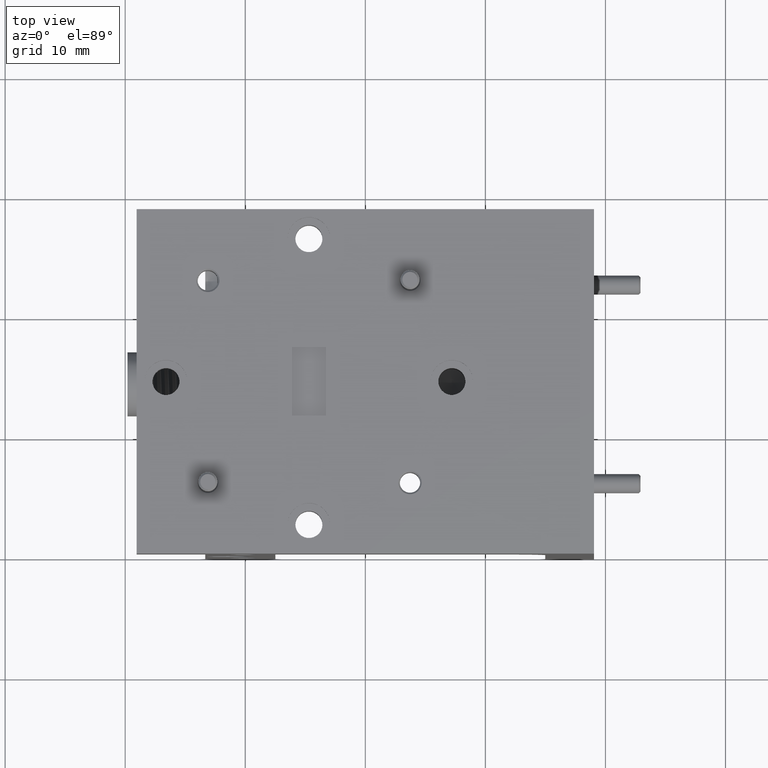
[diagram: clean part render]
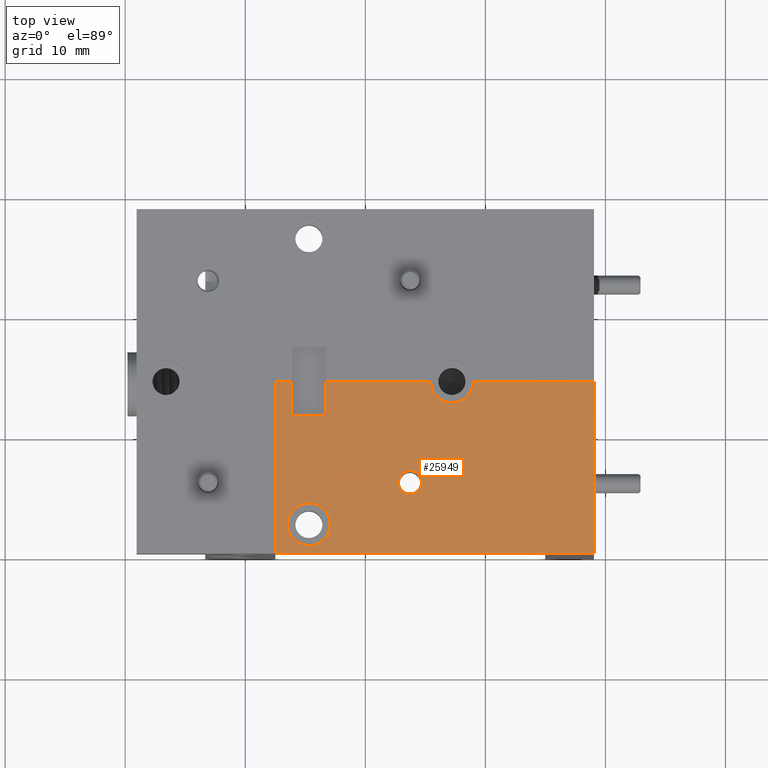
[diagram: same view with one face highlighted and labeled with its STEP entity id]
A machine part, top view. The second image highlights one B-rep face of the part: STEP entity #25949.
In plain terms, the highlighted planar face has unit normal (-0, 0, -1).
Its self-contained STEP definition (entity closure, byte-faithful):
#202 = VERTEX_POINT ( 'NONE', #14146 ) ;
#234 = ORIENTED_EDGE ( 'NONE', *, *, #18430, .F. ) ;
#330 = CARTESIAN_POINT ( 'NONE',  ( -0.2949999999999988200, 0.5649999999999999500, 0.5649999999999988400 ) ) ;
#1016 = CARTESIAN_POINT ( 'NONE',  ( -0.1290000000000008100, 0.5649999999999999500, 0.5650000000000000600 ) ) ;
#1029 = VERTEX_POINT ( 'NONE', #9096 ) ;
#1791 = DIRECTION ( 'NONE',  ( 1.387778780781711000E-017, 1.000000000000000000, 4.050170708698059000E-018 ) ) ;
#1998 = EDGE_CURVE ( 'NONE', #27617, #6020, #11255, .T. ) ;
#2064 = CARTESIAN_POINT ( 'NONE',  ( -0.2949999999999988200, 0.5649999999999999500, 0.5649999999999988400 ) ) ;
#2114 = EDGE_CURVE ( 'NONE', #2883, #10790, #21637, .T. ) ;
#2136 = CARTESIAN_POINT ( 'NONE',  ( -0.2949999999999988200, 0.5649999999999999500, 0.5649999999999988400 ) ) ;
#2465 = EDGE_CURVE ( 'NONE', #5831, #1029, #3592, .T. ) ;
#2883 = VERTEX_POINT ( 'NONE', #6012 ) ;
#3416 = CARTESIAN_POINT ( 'NONE',  ( -0.1290000000000008100, 0.4530000000000002400, 0.5650000000000000600 ) ) ;
#3592 = CIRCLE ( 'NONE', #15293, 0.07000000000000017300 ) ;
#3831 = VERTEX_POINT ( 'NONE', #20915 ) ;
#4678 = CARTESIAN_POINT ( 'NONE',  ( 0.1849563036811929000, 0.2335436963188052000, 0.5649999999999991700 ) ) ;
#4899 = VERTEX_POINT ( 'NONE', #6624 ) ;
#5302 = CARTESIAN_POINT ( 'NONE',  ( -0.2949999999999988200, 6.829619984160658000E-017, 0.5649999999999988400 ) ) ;
#5313 = LINE ( 'NONE', #8975, #17527 ) ;
#5366 = CARTESIAN_POINT ( 'NONE',  ( 0.2837499999999994500, 0.5649999999999999500, 0.5650000000000000600 ) ) ;
#5577 = AXIS2_PLACEMENT_3D ( 'NONE', #18309, #16226, #8966 ) ;
#5785 = DIRECTION ( 'NONE',  ( 1.000000000000000000, 0.0000000000000000000, 0.0000000000000000000 ) ) ;
#5831 = VERTEX_POINT ( 'NONE', #26460 ) ;
#5916 = DIRECTION ( 'NONE',  ( 1.000000000000000000, 0.0000000000000000000, 0.0000000000000000000 ) ) ;
#6012 = CARTESIAN_POINT ( 'NONE',  ( 0.1079563036811929400, 0.2335436963188052000, 0.5649999999999991700 ) ) ;
#6020 = VERTEX_POINT ( 'NONE', #1016 ) ;
#6570 = DIRECTION ( 'NONE',  ( 1.387778780781711000E-017, 1.000000000000000000, 4.050170708698059000E-018 ) ) ;
#6624 = CARTESIAN_POINT ( 'NONE',  ( -0.2550000000000007300, 0.09625000000000004400, 0.5650000000000000600 ) ) ;
#7839 = DIRECTION ( 'NONE',  ( -1.804112415015879400E-016, 4.050170708694932800E-018, -1.000000000000000000 ) ) ;
#7993 = ORIENTED_EDGE ( 'NONE', *, *, #9375, .T. ) ;
#8112 = DIRECTION ( 'NONE',  ( 0.0000000000000000000, 1.110106019944802700E-030, 1.000000000000000000 ) ) ;
#8269 = ORIENTED_EDGE ( 'NONE', *, *, #27394, .T. ) ;
#8485 = CARTESIAN_POINT ( 'NONE',  ( -0.1290000000000008100, 0.6770000000000001600, 0.5650000000000000600 ) ) ;
#8499 = LINE ( 'NONE', #17229, #12682 ) ;
#8966 = DIRECTION ( 'NONE',  ( 1.000000000000000000, 0.0000000000000000000, 0.0000000000000000000 ) ) ;
#8975 = CARTESIAN_POINT ( 'NONE',  ( -0.2949999999999988200, 6.829619984160658000E-017, 0.5649999999999988400 ) ) ;
#9041 = VECTOR ( 'NONE', #1791, 39.37007874015748100 ) ;
#9096 = CARTESIAN_POINT ( 'NONE',  ( 0.3537499999999996200, 0.5649999999999999500, 0.5650000000000000600 ) ) ;
#9141 = VECTOR ( 'NONE', #15840, 39.37007874015748100 ) ;
#9209 = DIRECTION ( 'NONE',  ( 1.000000000000000000, 1.219574997171546600E-015, 0.0000000000000000000 ) ) ;
#9337 = CARTESIAN_POINT ( 'NONE',  ( 0.1464563036811929200, 0.2335436963188052000, 0.5649999999999991700 ) ) ;
#9375 = EDGE_CURVE ( 'NONE', #5831, #6020, #15333, .T. ) ;
#9672 = EDGE_CURVE ( 'NONE', #3831, #4899, #20703, .T. ) ;
#9928 = LINE ( 'NONE', #30544, #9141 ) ;
#10341 = CARTESIAN_POINT ( 'NONE',  ( -0.2410000000000007100, 0.4530000000000001200, 0.5649999999999999500 ) ) ;
#10414 = DIRECTION ( 'NONE',  ( 1.000000000000000000, -1.387778780781147700E-017, -1.804112415015879400E-016 ) ) ;
#10790 = VERTEX_POINT ( 'NONE', #4678 ) ;
#10868 = FACE_BOUND ( 'NONE', #28212, .T. ) ;
#10991 = ORIENTED_EDGE ( 'NONE', *, *, #29814, .F. ) ;
#11255 = LINE ( 'NONE', #8485, #11646 ) ;
#11561 = DIRECTION ( 'NONE',  ( 0.0000000000000000000, 1.311943478116585100E-030, 1.000000000000000000 ) ) ;
#11646 = VECTOR ( 'NONE', #18650, 39.37007874015748100 ) ;
#11652 = DIRECTION ( 'NONE',  ( 1.000000000000000000, 0.0000000000000000000, 0.0000000000000000000 ) ) ;
#11685 = ORIENTED_EDGE ( 'NONE', *, *, #27276, .T. ) ;
#12682 = VECTOR ( 'NONE', #24631, 39.37007874015748100 ) ;
#12699 = AXIS2_PLACEMENT_3D ( 'NONE', #9337, #11561, #11652 ) ;
#13228 = VERTEX_POINT ( 'NONE', #15278 ) ;
#13401 = VECTOR ( 'NONE', #9209, 39.37007874015748100 ) ;
#13998 = ORIENTED_EDGE ( 'NONE', *, *, #24138, .T. ) ;
#14146 = CARTESIAN_POINT ( 'NONE',  ( -0.2410000000000007100, 0.5649999999999999500, 0.5649999999999999500 ) ) ;
#15278 = CARTESIAN_POINT ( 'NONE',  ( 0.7500000000000010000, 0.5649999999999999500, 0.5649999999999997200 ) ) ;
#15293 = AXIS2_PLACEMENT_3D ( 'NONE', #5366, #8112, #5785 ) ;
#15333 = LINE ( 'NONE', #330, #16465 ) ;
#15367 = LINE ( 'NONE', #2136, #26103 ) ;
#15840 = DIRECTION ( 'NONE',  ( -3.628848771744608400E-031, -1.000000000000000000, -2.018374581717823200E-031 ) ) ;
#16137 = CARTESIAN_POINT ( 'NONE',  ( -0.2410000000000007100, 0.4530000000000001200, 0.5649999999999999500 ) ) ;
#16226 = DIRECTION ( 'NONE',  ( 0.0000000000000000000, 1.211024749030693900E-030, 1.000000000000000000 ) ) ;
#16349 = CARTESIAN_POINT ( 'NONE',  ( 0.7500000000000010000, 6.829619984160658000E-017, 0.5649999999999997200 ) ) ;
#16465 = VECTOR ( 'NONE', #22299, 39.37007874015748100 ) ;
#16760 = ORIENTED_EDGE ( 'NONE', *, *, #31195, .F. ) ;
#16992 = ORIENTED_EDGE ( 'NONE', *, *, #9672, .F. ) ;
#17229 = CARTESIAN_POINT ( 'NONE',  ( -0.2949999999999988200, 0.5649999999999999500, 0.5649999999999988400 ) ) ;
#17527 = VECTOR ( 'NONE', #6570, 39.37007874015748100 ) ;
#18009 = CARTESIAN_POINT ( 'NONE',  ( -0.2949999999999988200, 6.829619984160658000E-017, 0.5649999999999988400 ) ) ;
#18101 = CARTESIAN_POINT ( 'NONE',  ( -0.1850000000000006900, 0.09625000000000003000, 0.5650000000000000600 ) ) ;
#18251 = VECTOR ( 'NONE', #22392, 39.37007874015748100 ) ;
#18274 = DIRECTION ( 'NONE',  ( 1.000000000000000000, 0.0000000000000000000, 0.0000000000000000000 ) ) ;
#18309 = CARTESIAN_POINT ( 'NONE',  ( -0.1850000000000006900, 0.09625000000000003000, 0.5650000000000000600 ) ) ;
#18430 = EDGE_CURVE ( 'NONE', #10790, #2883, #30334, .T. ) ;
#18650 = DIRECTION ( 'NONE',  ( 3.628848771744608800E-031, 1.000000000000000000, 2.018374581717823600E-031 ) ) ;
#18789 = VERTEX_POINT ( 'NONE', #10341 ) ;
#19000 = ORIENTED_EDGE ( 'NONE', *, *, #26240, .F. ) ;
#20703 = CIRCLE ( 'NONE', #26323, 0.07000000000000003400 ) ;
#20915 = CARTESIAN_POINT ( 'NONE',  ( -0.1150000000000006600, 0.09625000000000003000, 0.5650000000000000600 ) ) ;
#21237 = FACE_BOUND ( 'NONE', #24320, .T. ) ;
#21637 = CIRCLE ( 'NONE', #12699, 0.03849999999999997900 ) ;
#22299 = DIRECTION ( 'NONE',  ( -1.000000000000000000, 1.387778780781147700E-017, 1.804112415015879400E-016 ) ) ;
#22392 = DIRECTION ( 'NONE',  ( -1.000000000000000000, 1.387778780781147700E-017, 1.804112415015879400E-016 ) ) ;
#22431 = ORIENTED_EDGE ( 'NONE', *, *, #26197, .F. ) ;
#22498 = EDGE_LOOP ( 'NONE', ( #22431, #10991, #11685, #19000, #16760, #13998, #8269, #27538, #7993, #29928 ) ) ;
#23113 = VERTEX_POINT ( 'NONE', #26504 ) ;
#23119 = DIRECTION ( 'NONE',  ( 0.0000000000000000000, 1.211024749030693900E-030, 1.000000000000000000 ) ) ;
#23122 = AXIS2_PLACEMENT_3D ( 'NONE', #18009, #7839, #10414 ) ;
#23199 = VERTEX_POINT ( 'NONE', #24789 ) ;
#23995 = EDGE_CURVE ( 'NONE', #4899, #3831, #29372, .T. ) ;
#24138 = EDGE_CURVE ( 'NONE', #23113, #13228, #28570, .T. ) ;
#24320 = EDGE_LOOP ( 'NONE', ( #234, #30581 ) ) ;
#24631 = DIRECTION ( 'NONE',  ( -1.000000000000000000, 1.387778780781147700E-017, 1.804112415015879400E-016 ) ) ;
#24762 = PLANE ( 'NONE',  #23122 ) ;
#24789 = CARTESIAN_POINT ( 'NONE',  ( -0.2949999999999988200, 6.829619984160658000E-017, 0.5649999999999988400 ) ) ;
#24945 = CARTESIAN_POINT ( 'NONE',  ( 0.1464563036811929200, 0.2335436963188052000, 0.5649999999999991700 ) ) ;
#25112 = VERTEX_POINT ( 'NONE', #2064 ) ;
#25949 = ADVANCED_FACE ( 'NONE', ( #10868, #21237, #28093 ), #24762, .F. ) ;
#25995 = ORIENTED_EDGE ( 'NONE', *, *, #23995, .F. ) ;
#26103 = VECTOR ( 'NONE', #26661, 39.37007874015748100 ) ;
#26197 = EDGE_CURVE ( 'NONE', #18789, #27617, #26464, .T. ) ;
#26222 = AXIS2_PLACEMENT_3D ( 'NONE', #24945, #27367, #18274 ) ;
#26240 = EDGE_CURVE ( 'NONE', #23199, #25112, #5313, .T. ) ;
#26323 = AXIS2_PLACEMENT_3D ( 'NONE', #18101, #23119, #5916 ) ;
#26460 = CARTESIAN_POINT ( 'NONE',  ( 0.2137499999999992500, 0.5649999999999999500, 0.5650000000000000600 ) ) ;
#26464 = LINE ( 'NONE', #16137, #13401 ) ;
#26504 = CARTESIAN_POINT ( 'NONE',  ( 0.7500000000000010000, 6.829619984160658000E-017, 0.5649999999999997200 ) ) ;
#26661 = DIRECTION ( 'NONE',  ( -1.000000000000000000, 1.387778780781147700E-017, 1.804112415015879400E-016 ) ) ;
#27276 = EDGE_CURVE ( 'NONE', #202, #25112, #15367, .T. ) ;
#27367 = DIRECTION ( 'NONE',  ( 0.0000000000000000000, 1.311943478116585100E-030, 1.000000000000000000 ) ) ;
#27394 = EDGE_CURVE ( 'NONE', #13228, #1029, #8499, .T. ) ;
#27538 = ORIENTED_EDGE ( 'NONE', *, *, #2465, .F. ) ;
#27617 = VERTEX_POINT ( 'NONE', #3416 ) ;
#28093 = FACE_OUTER_BOUND ( 'NONE', #22498, .T. ) ;
#28212 = EDGE_LOOP ( 'NONE', ( #16992, #25995 ) ) ;
#28570 = LINE ( 'NONE', #16349, #9041 ) ;
#29372 = CIRCLE ( 'NONE', #5577, 0.07000000000000003400 ) ;
#29814 = EDGE_CURVE ( 'NONE', #202, #18789, #9928, .T. ) ;
#29928 = ORIENTED_EDGE ( 'NONE', *, *, #1998, .F. ) ;
#30334 = CIRCLE ( 'NONE', #26222, 0.03849999999999997900 ) ;
#30544 = CARTESIAN_POINT ( 'NONE',  ( -0.2410000000000007100, 0.6770000000000001600, 0.5649999999999999500 ) ) ;
#30581 = ORIENTED_EDGE ( 'NONE', *, *, #2114, .F. ) ;
#30864 = LINE ( 'NONE', #5302, #18251 ) ;
#31195 = EDGE_CURVE ( 'NONE', #23113, #23199, #30864, .T. ) ;